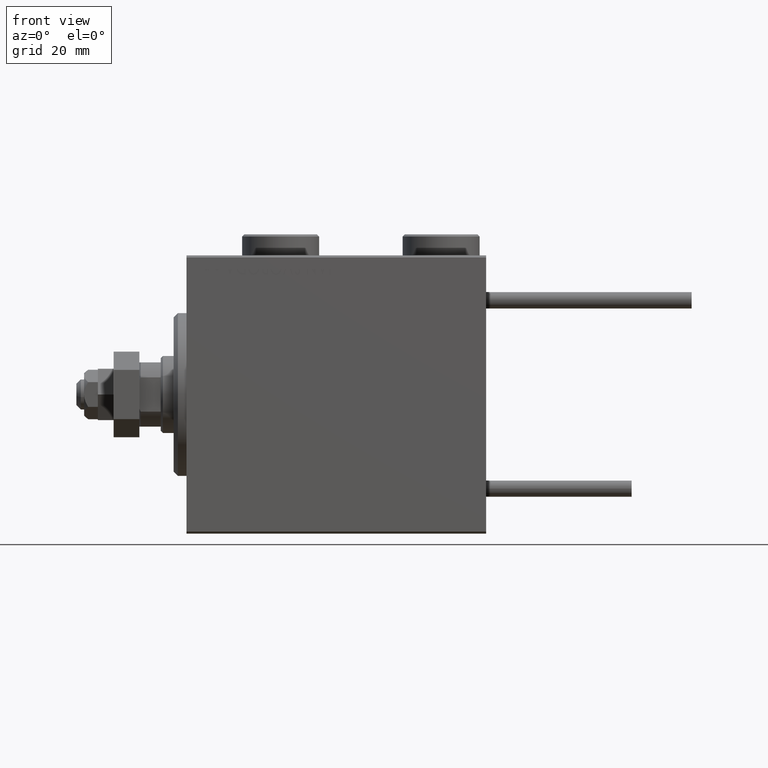
[diagram: clean part render]
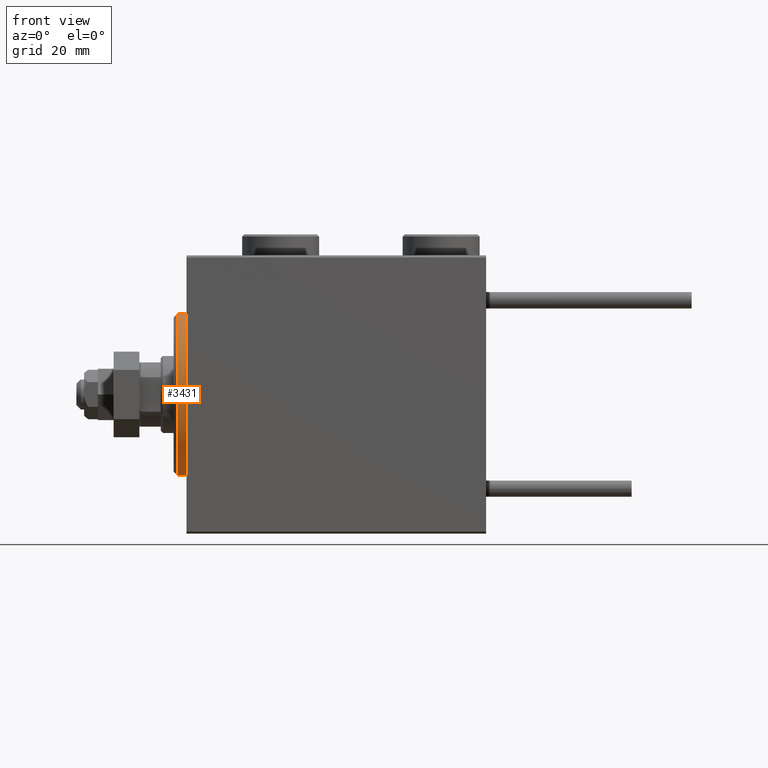
[diagram: same view with one face highlighted and labeled with its STEP entity id]
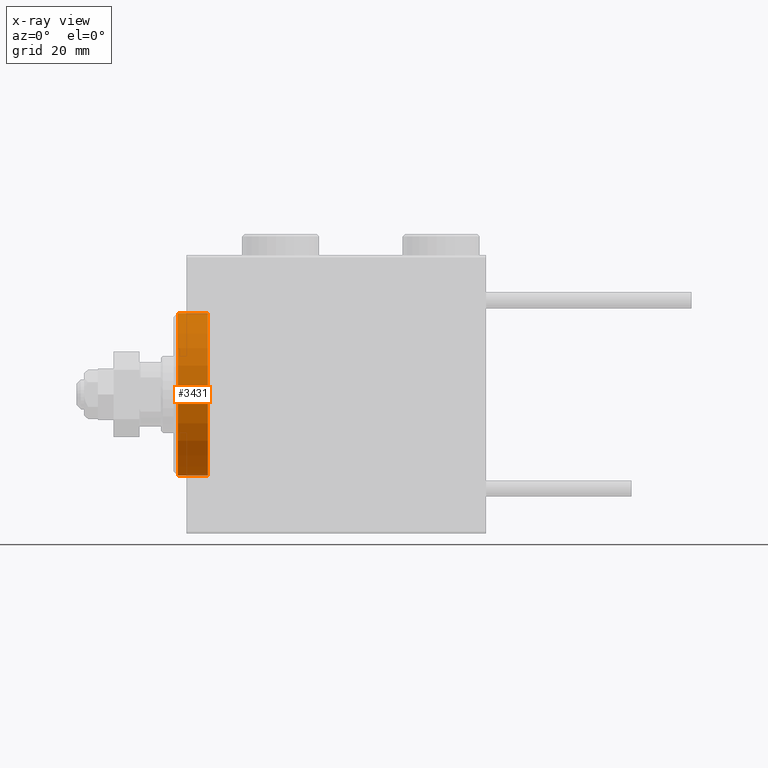
[diagram: x-ray of the same camera — body ghosted, the highlighted face saturated]
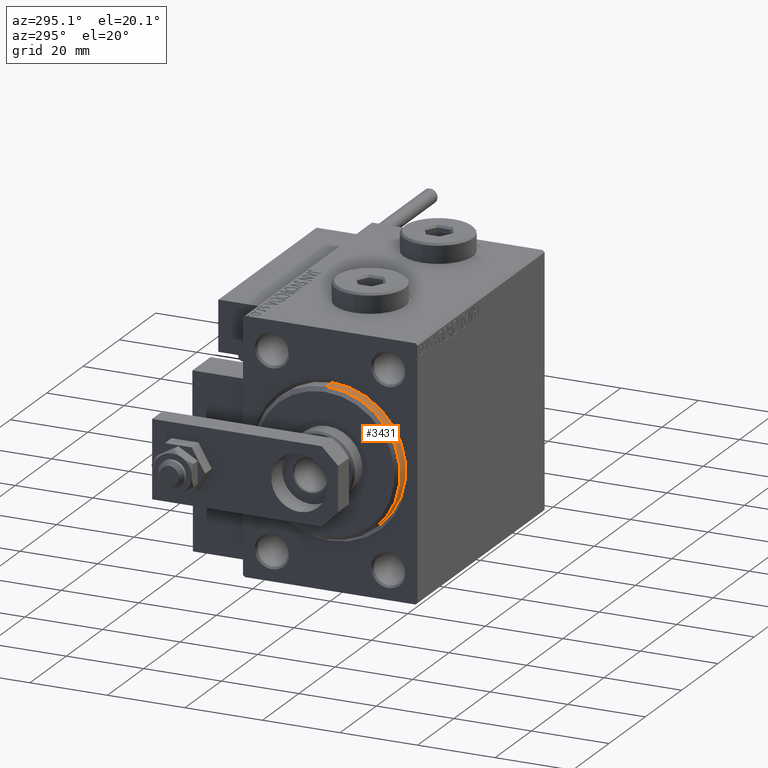
[diagram: same view with one face highlighted and labeled with its STEP entity id]
A machine part, front view. The second image highlights one B-rep face of the part: STEP entity #3431.
The next image is the same camera in x-ray: the body ghosted, the highlighted face saturated — about 2% of this face is hidden behind the body in this view.
A second angle (auxiliary view) of the same face is appended — the face is thin or edge-on in the first view.
In plain terms, the highlighted cylindrical surface (partial cylindrical patch) has radius 19 mm, axis along (1, -0, -0).
Its self-contained STEP definition (entity closure, byte-faithful):
#125 = FACE_OUTER_BOUND ( 'NONE', #31088, .T. ) ;
#218 = CARTESIAN_POINT ( 'NONE',  ( -5.000000000000000000, 2.326828918379970970E-15, -19.00000000000000000 ) ) ;
#2863 = CIRCLE ( 'NONE', #16457, 19.00000000000000000 ) ;
#3431 = ADVANCED_FACE ( 'NONE', ( #125 ), #25385, .T. ) ;
#4196 = VECTOR ( 'NONE', #44198, 1000.000000000000000 ) ;
#4907 = DIRECTION ( 'NONE',  ( 0.000000000000000000, 0.000000000000000000, 1.000000000000000000 ) ) ;
#6438 = AXIS2_PLACEMENT_3D ( 'NONE', #24588, #41063, #16630 ) ;
#7082 = CARTESIAN_POINT ( 'NONE',  ( -5.000000000000000000, 0.000000000000000000, 19.00000000000000000 ) ) ;
#7472 = DIRECTION ( 'NONE',  ( -1.000000000000000000, -0.000000000000000000, -0.000000000000000000 ) ) ;
#8709 = EDGE_CURVE ( 'NONE', #22448, #39263, #38788, .T. ) ;
#8950 = ORIENTED_EDGE ( 'NONE', *, *, #51321, .F. ) ;
#15553 = CARTESIAN_POINT ( 'NONE',  ( 1.999999999999992228, 0.000000000000000000, 0.000000000000000000 ) ) ;
#16457 = AXIS2_PLACEMENT_3D ( 'NONE', #24299, #41313, #4907 ) ;
#16630 = DIRECTION ( 'NONE',  ( 0.000000000000000000, 0.000000000000000000, 1.000000000000000000 ) ) ;
#22448 = VERTEX_POINT ( 'NONE', #43039 ) ;
#23812 = DIRECTION ( 'NONE',  ( -1.000000000000000000, 0.000000000000000000, 0.000000000000000000 ) ) ;
#24299 = CARTESIAN_POINT ( 'NONE',  ( -5.000000000000000000, 0.000000000000000000, 0.000000000000000000 ) ) ;
#24588 = CARTESIAN_POINT ( 'NONE',  ( 3.000000000000000000, 0.000000000000000000, 0.000000000000000000 ) ) ;
#25385 = CYLINDRICAL_SURFACE ( 'NONE', #6438, 19.00000000000000000 ) ;
#25954 = ORIENTED_EDGE ( 'NONE', *, *, #8709, .T. ) ;
#26120 = VERTEX_POINT ( 'NONE', #218 ) ;
#28430 = LINE ( 'NONE', #39345, #38253 ) ;
#28981 = ORIENTED_EDGE ( 'NONE', *, *, #37157, .T. ) ;
#31088 = EDGE_LOOP ( 'NONE', ( #25954, #28981, #8950, #40865 ) ) ;
#31732 = CARTESIAN_POINT ( 'NONE',  ( 1.999999999999992228, 2.326828918379970970E-15, -19.00000000000000000 ) ) ;
#31992 = AXIS2_PLACEMENT_3D ( 'NONE', #15553, #23812, #40013 ) ;
#35672 = CARTESIAN_POINT ( 'NONE',  ( 3.000000000000000000, 0.000000000000000000, 19.00000000000000000 ) ) ;
#37157 = EDGE_CURVE ( 'NONE', #39263, #26120, #28430, .T. ) ;
#38253 = VECTOR ( 'NONE', #7472, 1000.000000000000000 ) ;
#38788 = CIRCLE ( 'NONE', #31992, 19.00000000000000000 ) ;
#39263 = VERTEX_POINT ( 'NONE', #31732 ) ;
#39345 = CARTESIAN_POINT ( 'NONE',  ( 3.000000000000000000, 2.326828918379970970E-15, -19.00000000000000000 ) ) ;
#40013 = DIRECTION ( 'NONE',  ( 0.000000000000000000, 0.000000000000000000, -1.000000000000000000 ) ) ;
#40576 = EDGE_CURVE ( 'NONE', #22448, #43702, #44996, .T. ) ;
#40865 = ORIENTED_EDGE ( 'NONE', *, *, #40576, .F. ) ;
#41063 = DIRECTION ( 'NONE',  ( -1.000000000000000000, -0.000000000000000000, -0.000000000000000000 ) ) ;
#41313 = DIRECTION ( 'NONE',  ( -1.000000000000000000, 0.000000000000000000, 0.000000000000000000 ) ) ;
#43039 = CARTESIAN_POINT ( 'NONE',  ( 1.999999999999992228, 0.000000000000000000, 19.00000000000000000 ) ) ;
#43702 = VERTEX_POINT ( 'NONE', #7082 ) ;
#44198 = DIRECTION ( 'NONE',  ( -1.000000000000000000, -0.000000000000000000, -0.000000000000000000 ) ) ;
#44996 = LINE ( 'NONE', #35672, #4196 ) ;
#51321 = EDGE_CURVE ( 'NONE', #43702, #26120, #2863, .T. ) ;